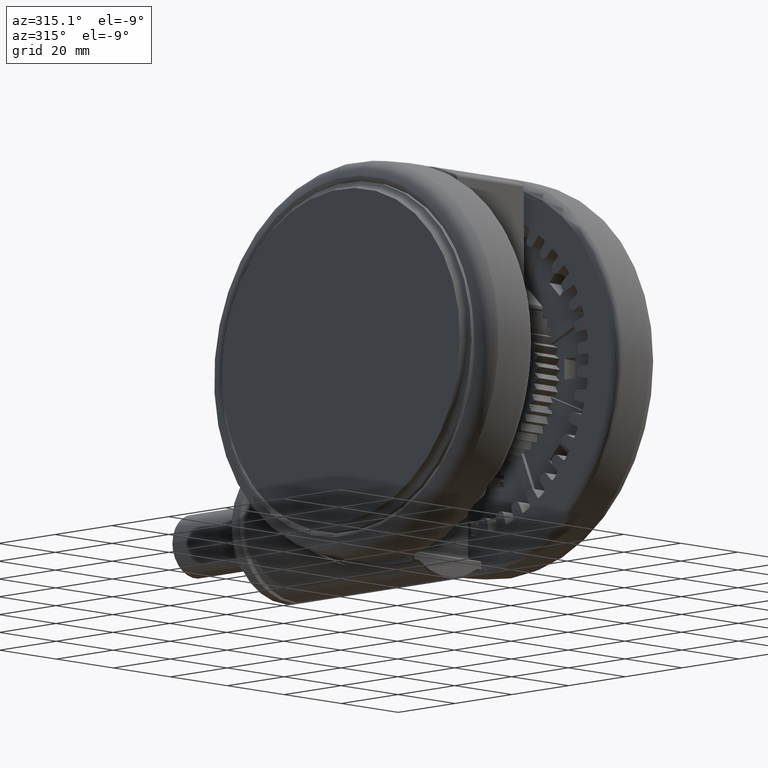
[diagram: clean part render]
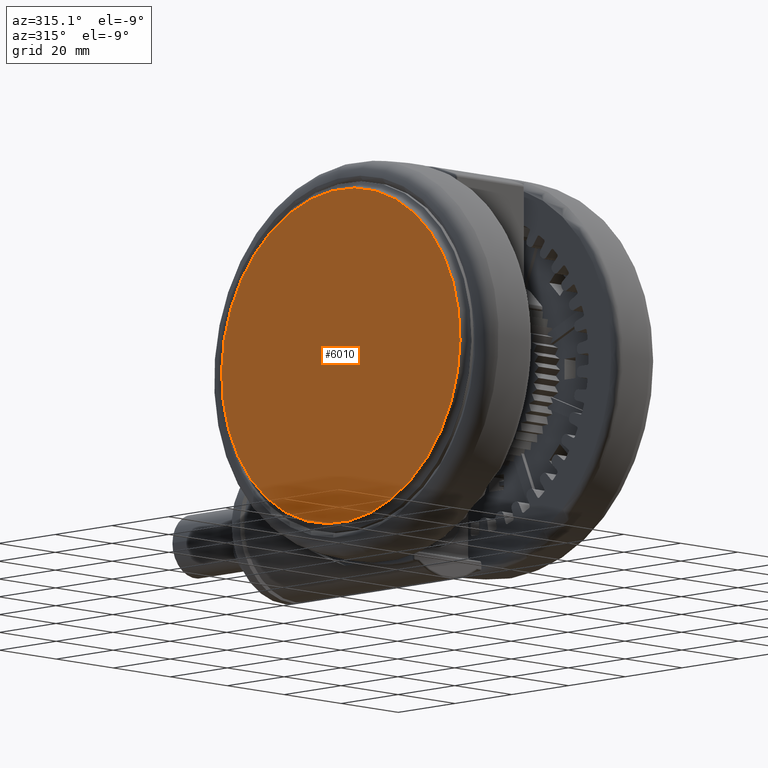
[diagram: same view with one face highlighted and labeled with its STEP entity id]
A machine part, auxiliary view. The second image highlights one B-rep face of the part: STEP entity #6010.
In plain terms, the highlighted planar face has unit normal (1, 0, 0).
Its self-contained STEP definition (entity closure, byte-faithful):
#3543 = CARTESIAN_POINT ( 'NONE',  ( -2.961427369016168300, -41.89548141869044400, -65.19999999999994600 ) ) ;
#3854 = DIRECTION ( 'NONE',  ( 0.07051016129148469900, 0.9975110611690722900, 0.0000000000000000000 ) ) ;
#6010 = ADVANCED_FACE ( 'NONE', ( #22064 ), #54753, .F. ) ;
#13045 = CARTESIAN_POINT ( 'NONE',  ( -5.947738144010394900E-007, -1.684958939041081300E-005, -65.19999999999994600 ) ) ;
#16656 = AXIS2_PLACEMENT_3D ( 'NONE', #31444, #73054, #37400 ) ;
#19028 = DIRECTION ( 'NONE',  ( 0.0000000000000000000, 0.0000000000000000000, 1.000000000000000000 ) ) ;
#19250 = EDGE_CURVE ( 'NONE', #61564, #73836, #38100, .T. ) ;
#21490 = ORIENTED_EDGE ( 'NONE', *, *, #19250, .T. ) ;
#22064 = FACE_OUTER_BOUND ( 'NONE', #62548, .T. ) ;
#27878 = CIRCLE ( 'NONE', #48201, 42.00000000000001400 ) ;
#31444 = CARTESIAN_POINT ( 'NONE',  ( -5.947738144010394900E-007, -1.684958939041081300E-005, -65.19999999999994600 ) ) ;
#37400 = DIRECTION ( 'NONE',  ( 0.07051016129148469900, 0.9975110611690722900, 0.0000000000000000000 ) ) ;
#38100 = CIRCLE ( 'NONE', #16656, 42.00000000000001400 ) ;
#39531 = DIRECTION ( 'NONE',  ( 0.0000000000000000000, 0.0000000000000000000, -1.000000000000000000 ) ) ;
#40995 = CARTESIAN_POINT ( 'NONE',  ( 2.961426179468544800, 41.89544771951165800, -65.19999999999994600 ) ) ;
#48201 = AXIS2_PLACEMENT_3D ( 'NONE', #75162, #39531, #3854 ) ;
#52836 = EDGE_CURVE ( 'NONE', #73836, #61564, #27878, .T. ) ;
#54753 = PLANE ( 'NONE',  #65245 ) ;
#60731 = DIRECTION ( 'NONE',  ( -0.07051016129148471300, -0.9975110611690724000, 0.0000000000000000000 ) ) ;
#61564 = VERTEX_POINT ( 'NONE', #40995 ) ;
#62548 = EDGE_LOOP ( 'NONE', ( #21490, #75731 ) ) ;
#65245 = AXIS2_PLACEMENT_3D ( 'NONE', #13045, #19028, #60731 ) ;
#73054 = DIRECTION ( 'NONE',  ( 0.0000000000000000000, 0.0000000000000000000, -1.000000000000000000 ) ) ;
#73836 = VERTEX_POINT ( 'NONE', #3543 ) ;
#75162 = CARTESIAN_POINT ( 'NONE',  ( -5.947738144010394900E-007, -1.684958939041081300E-005, -65.19999999999994600 ) ) ;
#75731 = ORIENTED_EDGE ( 'NONE', *, *, #52836, .T. ) ;